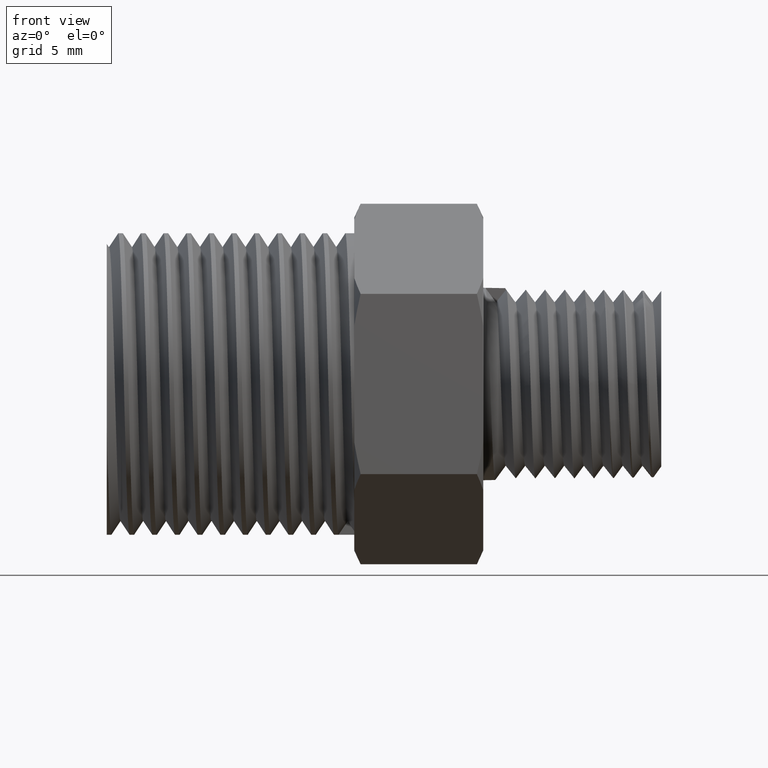
[diagram: clean part render]
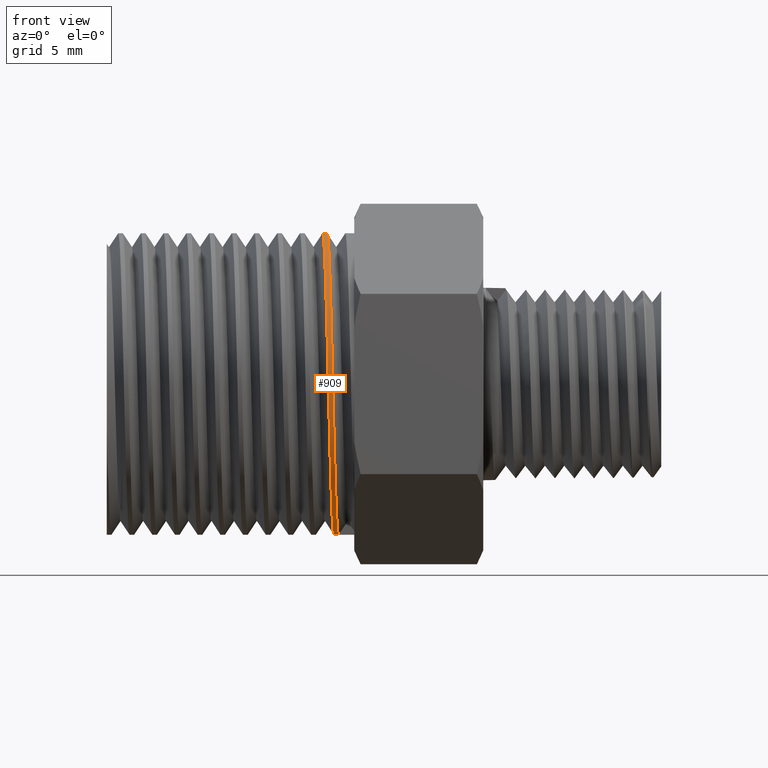
[diagram: same view with one face highlighted and labeled with its STEP entity id]
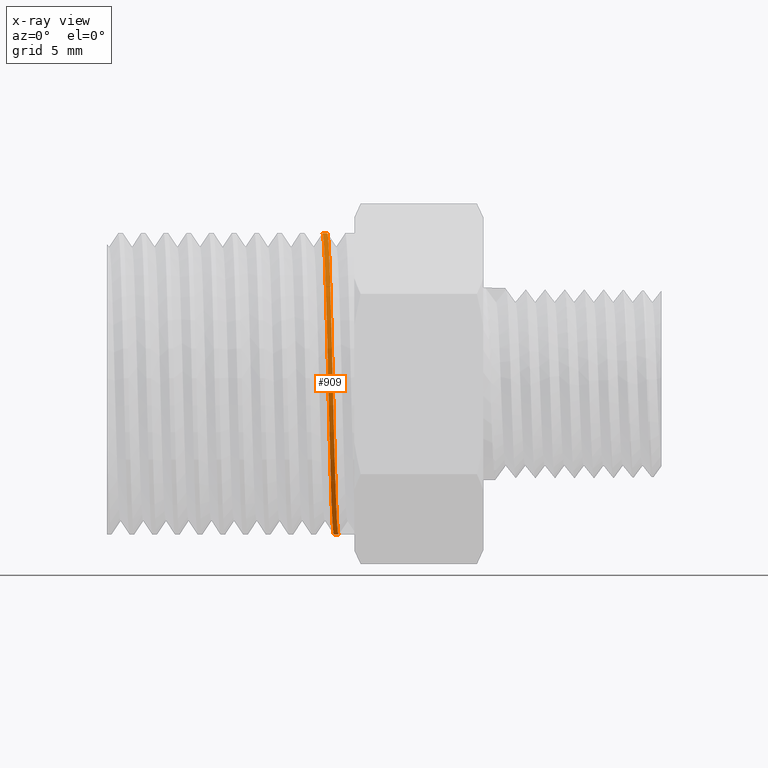
[diagram: x-ray of the same camera — body ghosted, the highlighted face saturated]
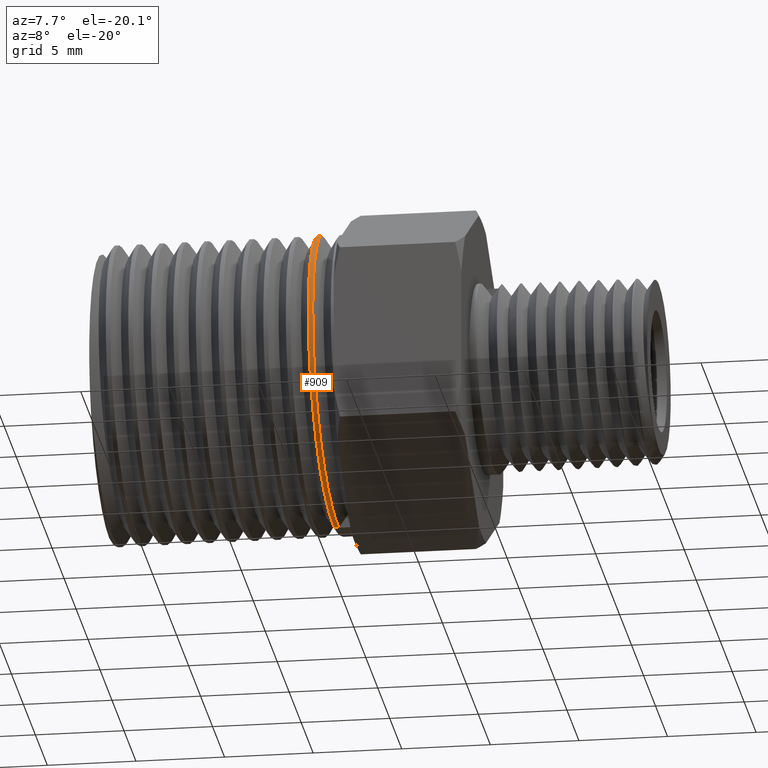
[diagram: same view with one face highlighted and labeled with its STEP entity id]
A machine part, front view. The second image highlights one B-rep face of the part: STEP entity #909.
The next image is the same camera in x-ray: the body ghosted, the highlighted face saturated — about 0% of this face is hidden behind the body in this view.
A second angle (auxiliary view) of the same face is appended — the face is thin or edge-on in the first view.
In plain terms, the highlighted cylindrical surface (partial cylindrical patch) has radius 8.4328 mm, axis along (1, -0, -0).
Its self-contained STEP definition (entity closure, byte-faithful):
#43 = VECTOR ( 'NONE', #3450, 39.37007874015748100 ) ;
#116 = LINE ( 'NONE', #5605, #43 ) ;
#289 = CARTESIAN_POINT ( 'NONE',  ( -0.1866756209371562000, 0.0000000000000000000, -0.3320000000000000200 ) ) ;
#297 = VECTOR ( 'NONE', #1168, 39.37007874015748100 ) ;
#309 = LINE ( 'NONE', #5217, #297 ) ;
#364 = CARTESIAN_POINT ( 'NONE',  ( -0.1991756209371562100, -0.3320000000000000200, 6.098741059753819000E-017 ) ) ;
#764 = VERTEX_POINT ( 'NONE', #289 ) ;
#808 = CARTESIAN_POINT ( 'NONE',  ( -0.2085506209371562300, -0.1375189027078675100, 0.3320000000000000700 ) ) ;
#827 = CARTESIAN_POINT ( 'NONE',  ( -0.1929256209371562300, -0.2347594513539338600, -0.2347594513539337500 ) ) ;
#909 = ADVANCED_FACE ( 'NONE', ( #1206 ), #1138, .T. ) ;
#929 = CARTESIAN_POINT ( 'NONE',  ( -0.1923006209371562500, -0.3319999999999999100, 0.1375189027078677400 ) ) ;
#1005 = CARTESIAN_POINT ( 'NONE',  ( -0.1766756209371561600, 0.0000000000000000000, -0.3319999999999999600 ) ) ;
#1068 = EDGE_CURVE ( 'NONE', #3390, #1851, #5455, .T. ) ;
#1138 = CYLINDRICAL_SURFACE ( 'NONE', #4106, 0.3320000000000000200 ) ;
#1168 = DIRECTION ( 'NONE',  ( 1.000000000000000000, -0.0000000000000000000, -0.0000000000000000000 ) ) ;
#1206 = FACE_OUTER_BOUND ( 'NONE', #2663, .T. ) ;
#1280 = CARTESIAN_POINT ( 'NONE',  ( -0.1866756209371562000, 0.0000000000000000000, -0.3320000000000000200 ) ) ;
#1382 = CARTESIAN_POINT ( 'NONE',  ( -0.1860506209371561900, -0.3319999999999999100, -0.1375189027078676500 ) ) ;
#1849 = CARTESIAN_POINT ( 'NONE',  ( -0.1798006209371562100, -0.1375189027078677900, -0.3319999999999999100 ) ) ;
#1851 = VERTEX_POINT ( 'NONE', #1005 ) ;
#1886 = ORIENTED_EDGE ( 'NONE', *, *, #2746, .F. ) ;
#2151 = ORIENTED_EDGE ( 'NONE', *, *, #1068, .F. ) ;
#2286 = CARTESIAN_POINT ( 'NONE',  ( -0.1954256209371562100, -0.2347594513539337200, 0.2347594513539338300 ) ) ;
#2614 = DIRECTION ( 'NONE',  ( 0.0000000000000000000, 0.0000000000000000000, -1.000000000000000000 ) ) ;
#2663 = EDGE_LOOP ( 'NONE', ( #1886, #5187, #3294, #2151 ) ) ;
#2746 = EDGE_CURVE ( 'NONE', #4793, #3390, #309, .T. ) ;
#3107 = CARTESIAN_POINT ( 'NONE',  ( -0.2023006209371561700, -0.3319999999999999600, 0.1375189027078677600 ) ) ;
#3294 = ORIENTED_EDGE ( 'NONE', *, *, #3567, .T. ) ;
#3390 = VERTEX_POINT ( 'NONE', #5126 ) ;
#3450 = DIRECTION ( 'NONE',  ( 1.000000000000000000, -0.0000000000000000000, -0.0000000000000000000 ) ) ;
#3567 = EDGE_CURVE ( 'NONE', #764, #1851, #116, .T. ) ;
#3575 = CARTESIAN_POINT ( 'NONE',  ( -0.1960506209371562200, -0.3319999999999999600, -0.1375189027078676800 ) ) ;
#3674 = CARTESIAN_POINT ( 'NONE',  ( -0.2016756209371561900, 4.065827373169212300E-017, 0.3319999999999999600 ) ) ;
#3938 = EDGE_CURVE ( 'NONE', #4793, #764, #4874, .T. ) ;
#4027 = CARTESIAN_POINT ( 'NONE',  ( -0.1898006209371561900, -0.1375189027078678200, -0.3319999999999999600 ) ) ;
#4106 = AXIS2_PLACEMENT_3D ( 'NONE', #4325, #5675, #2614 ) ;
#4129 = CARTESIAN_POINT ( 'NONE',  ( -0.1891756209371561700, -0.3319999999999999600, 6.098741059753817800E-017 ) ) ;
#4325 = CARTESIAN_POINT ( 'NONE',  ( -0.6870000000000000600, 0.0000000000000000000, 0.0000000000000000000 ) ) ;
#4454 = CARTESIAN_POINT ( 'NONE',  ( -0.2116756209371561900, 4.065827373169212900E-017, 0.3320000000000000200 ) ) ;
#4554 = CARTESIAN_POINT ( 'NONE',  ( -0.1829256209371562000, -0.2347594513539338300, -0.2347594513539337000 ) ) ;
#4793 = VERTEX_POINT ( 'NONE', #4454 ) ;
#4874 =( BOUNDED_CURVE ( )  B_SPLINE_CURVE ( 2, ( #5687, #808, #5702, #3107, #364, #3575, #827, #4027, #1280 ),
 .UNSPECIFIED., .F., .T. ) 
 B_SPLINE_CURVE_WITH_KNOTS ( ( 3, 2, 2, 2, 3 ),
 ( 0.8636363636363636500, 0.8750000000000000000, 0.8863636363636363500, 0.8977272727272727100, 0.9090909090909091700 ),
 .UNSPECIFIED. ) 
 CURVE ( )  GEOMETRIC_REPRESENTATION_ITEM ( )  RATIONAL_B_SPLINE_CURVE ( ( 1.000000000000000000, 0.9238795325112867400, 1.000000000000000000, 0.9238795325112867400, 1.000000000000000000, 0.9238795325112867400, 1.000000000000000000, 0.9238795325112867400, 1.000000000000000000 ) ) 
 REPRESENTATION_ITEM ( '' )  );
#4971 = CARTESIAN_POINT ( 'NONE',  ( -0.1766756209371561600, 0.0000000000000000000, -0.3319999999999999600 ) ) ;
#5126 = CARTESIAN_POINT ( 'NONE',  ( -0.2016756209371561900, 4.065827373169212300E-017, 0.3319999999999999600 ) ) ;
#5187 = ORIENTED_EDGE ( 'NONE', *, *, #3938, .T. ) ;
#5217 = CARTESIAN_POINT ( 'NONE',  ( -0.6870000000000000600, 4.065827373169212900E-017, 0.3320000000000000200 ) ) ;
#5412 = CARTESIAN_POINT ( 'NONE',  ( -0.1985506209371562000, -0.1375189027078675100, 0.3320000000000000200 ) ) ;
#5455 =( BOUNDED_CURVE ( )  B_SPLINE_CURVE ( 2, ( #3674, #5412, #2286, #929, #4129, #1382, #4554, #1849, #4971 ),
 .UNSPECIFIED., .F., .F. ) 
 B_SPLINE_CURVE_WITH_KNOTS ( ( 3, 2, 2, 2, 3 ),
 ( 0.9545454545454545900, 0.9659090909090909400, 0.9772727272727272900, 0.9886363636363636500, 1.000000000000000000 ),
 .UNSPECIFIED. ) 
 CURVE ( )  GEOMETRIC_REPRESENTATION_ITEM ( )  RATIONAL_B_SPLINE_CURVE ( ( 1.000000000000000000, 0.9238795325112867400, 1.000000000000000000, 0.9238795325112867400, 1.000000000000000000, 0.9238795325112867400, 1.000000000000000000, 0.9238795325112867400, 1.000000000000000000 ) ) 
 REPRESENTATION_ITEM ( '' )  );
#5605 = CARTESIAN_POINT ( 'NONE',  ( -0.6870000000000000600, 0.0000000000000000000, -0.3320000000000000200 ) ) ;
#5675 = DIRECTION ( 'NONE',  ( 1.000000000000000000, -0.0000000000000000000, -0.0000000000000000000 ) ) ;
#5687 = CARTESIAN_POINT ( 'NONE',  ( -0.2116756209371561900, 4.065827373169212900E-017, 0.3320000000000000200 ) ) ;
#5702 = CARTESIAN_POINT ( 'NONE',  ( -0.2054256209371562400, -0.2347594513539337800, 0.2347594513539338600 ) ) ;